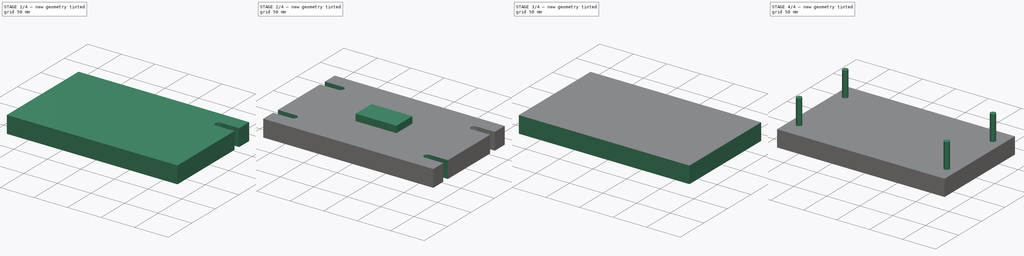
[diagram: build sequence overview — one tinted view per stage of 4, left to right]
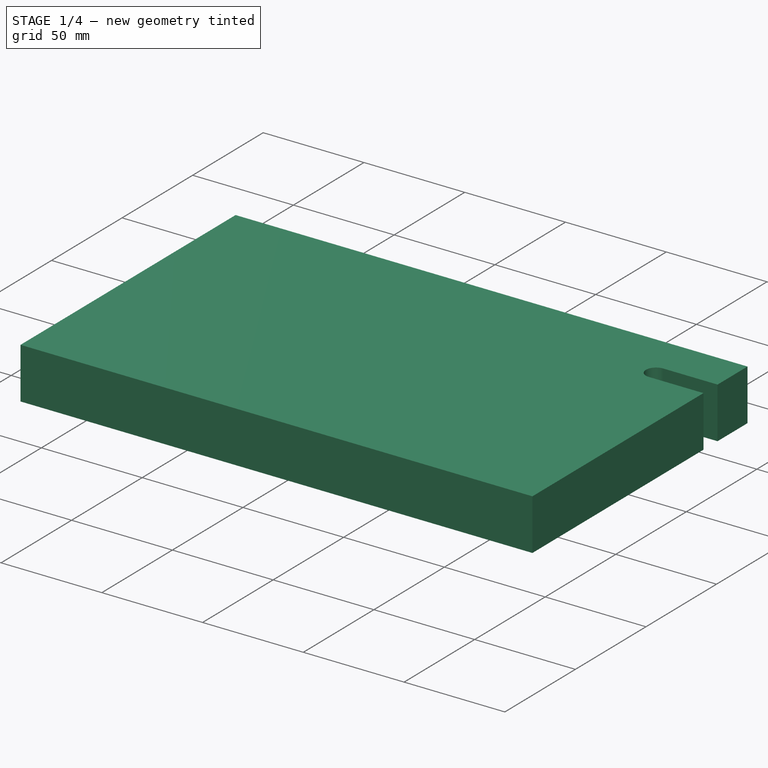
[diagram: stage 1 of 4 — iso view after this stage's code; geometry added in this stage tinted green]
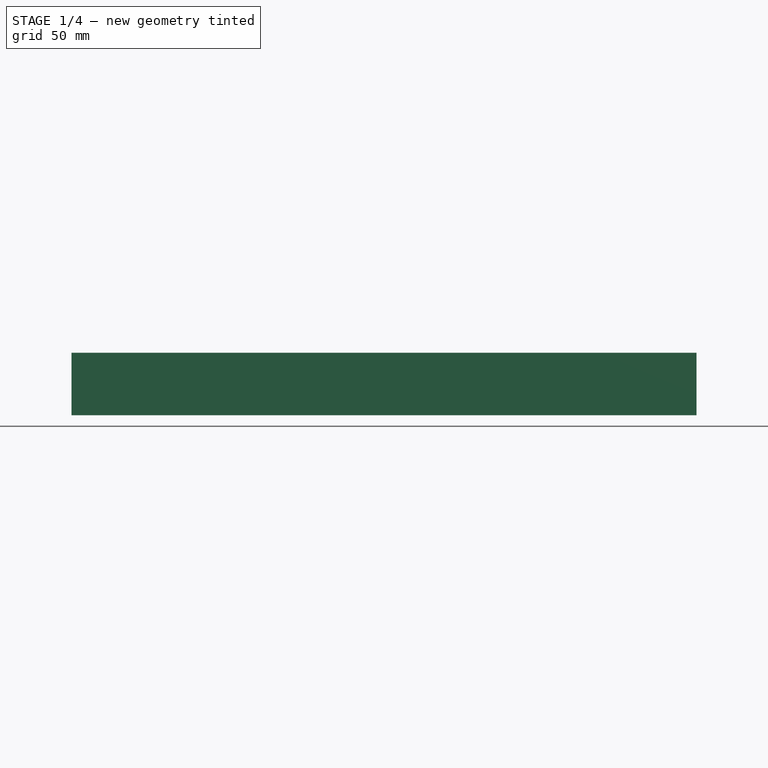
[diagram: stage 1 of 4 — front view after this stage's code; geometry added in this stage tinted green]
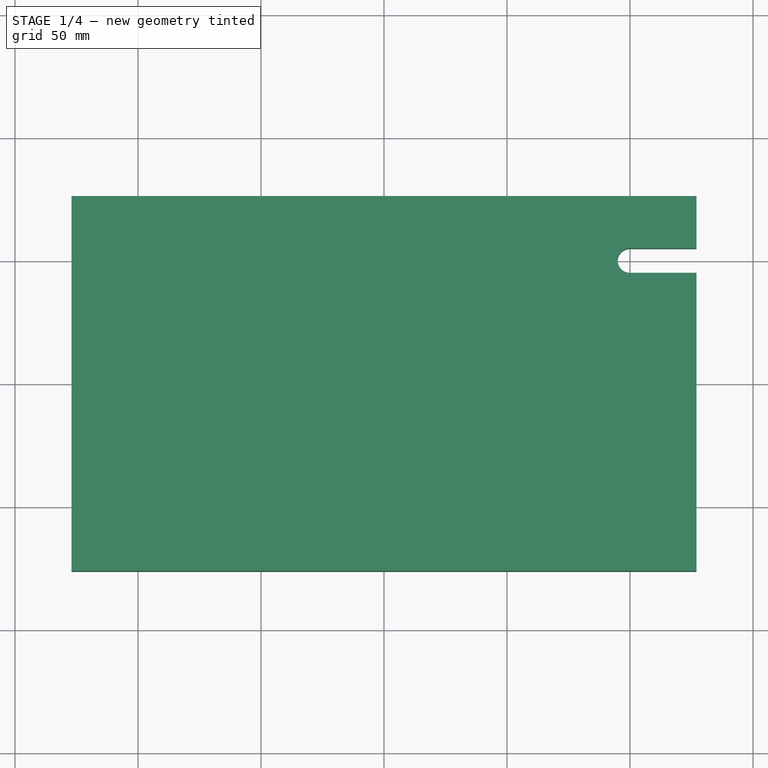
[diagram: stage 1 of 4 — top view after this stage's code; geometry added in this stage tinted green]
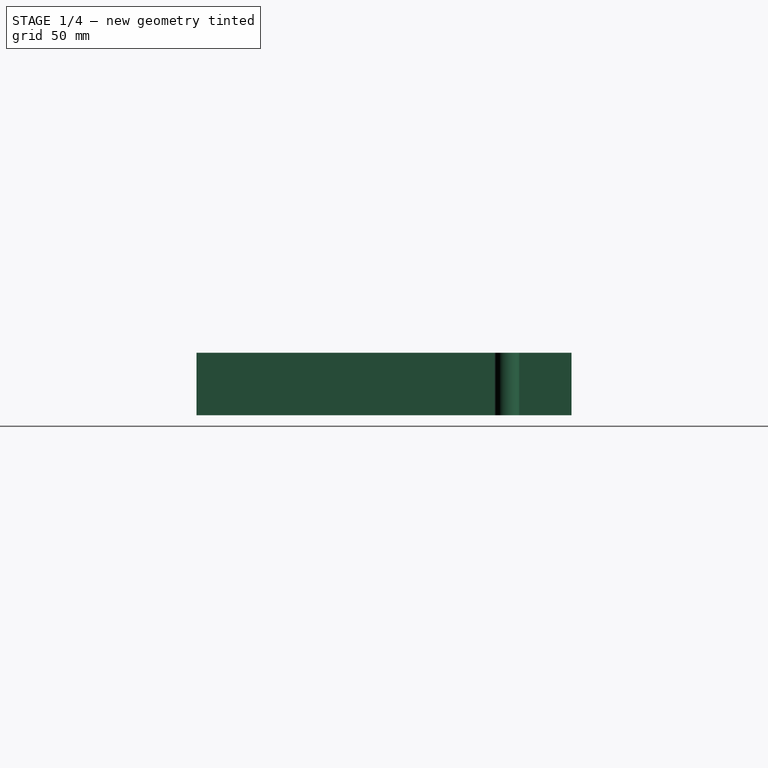
[diagram: stage 1 of 4 — right view after this stage's code; geometry added in this stage tinted green]
FCSTD DOCUMENT  (FreeCAD 0.17R13523 (Git))
Label: bell-metaldetector
License: All rights reserved
LicenseURL: http://en.wikipedia.org/wiki/All_rights_reserved
objects: Sketcher::SketchObject×8, PartDesign::Pad×4, PartDesign::Mirrored×4, PartDesign::Pocket×2, PartDesign::MultiTransform×2, PartDesign::Body×2, PartDesign::Revolution×1, PartDesign::ShapeBinder×1
note: 31 computed .brp shape members not serialized (recipe doc carries the construction recipe); baked Part::Feature solids carry a one-line shape summary decoded from their .brp

FEATURE [Sketcher::SketchObject] Sketch
  MapMode = 5
  Support = -> [XY_Plane]
  sketch-geometry (4):
    g0: LineSegment StartX=-127 StartY=76.2 StartZ=0 EndX=127 EndY=76.2 EndZ=0
    g1: LineSegment StartX=127 StartY=76.2 StartZ=0 EndX=127 EndY=-76.2 EndZ=0
    g2: LineSegment StartX=127 StartY=-76.2 StartZ=0 EndX=-127 EndY=-76.2 EndZ=0
    g3: LineSegment StartX=-127 StartY=-76.2 StartZ=0 EndX=-127 EndY=76.2 EndZ=0
  constraints (11):
    c: Coincident(g0,g1)
    c: Coincident(g1,g2)
    c: Coincident(g2,g3)
    c: Coincident(g3,g0)
    c: Horizontal(g0)
    c: Horizontal(g2)
    c: Vertical(g1)
    c: Vertical(g3)
    c: Symmetric(g0,g2,g-1)
    c: DistanceX(g0,g0) = 254
    c: DistanceY(g3,g3) = 152.4
FEATURE [PartDesign::Pad] Pad
  Length = 25.4
  Length2 = 100
  Profile = -> Sketch
  Type = 0
FEATURE [Sketcher::SketchObject] Sketch001
  MapMode = 5
  Placement = pos=(0,0,25.4) rot=(0,0,1;0rad)
  Support = -> [Pad]
  sketch-geometry (4):
    g0: LineSegment StartX=133.014 StartY=55 StartZ=0 EndX=100 EndY=55 EndZ=0
    g1: ArcOfCircle CenterX=100 CenterY=50 CenterZ=0 NormalX=0 NormalY=0 NormalZ=1 AngleXU=0 Radius=5 StartAngle=1.5708 EndAngle=4.71239
    g2: LineSegment StartX=100 StartY=45 StartZ=0 EndX=133.014 EndY=45 EndZ=0
    g3: LineSegment StartX=133.014 StartY=45 StartZ=0 EndX=133.014 EndY=55 EndZ=0
  constraints (10):
    c: Horizontal(g0)
    c: Tangent(g0,g1) = -1.5708
    c: Tangent(g1,g2) = -1.5708
    c: Coincident(g2,g3)
    c: Coincident(g3,g0)
    c: Horizontal(g2)
    c: Vertical(g3)
    c: Radius(g1) = 5
    c: DistanceX(g1) = 100
    c: DistanceY(g1) = 50
FEATURE [PartDesign::Pocket] Pocket
  BaseFeature = -> Pad
  Length = 5
  Length2 = 100
  Profile = -> Sketch001
  Type = 1
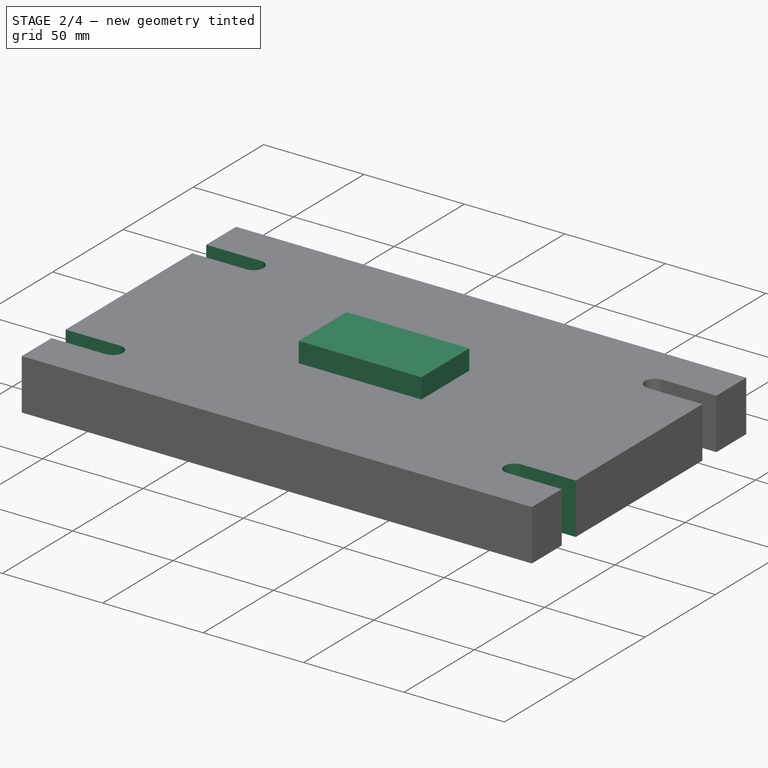
[diagram: stage 2 of 4 — iso view after this stage's code; geometry added in this stage tinted green]
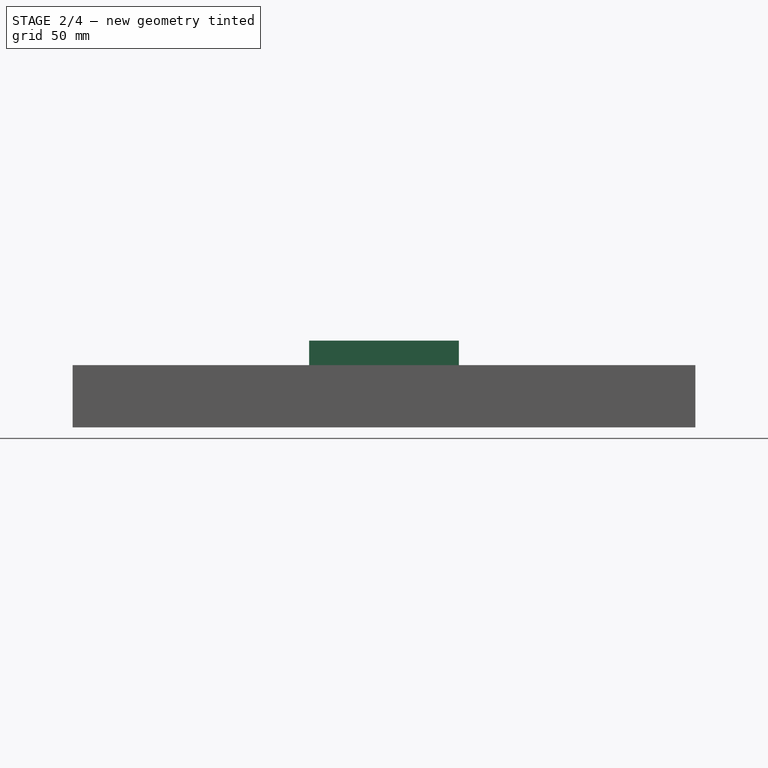
[diagram: stage 2 of 4 — front view after this stage's code; geometry added in this stage tinted green]
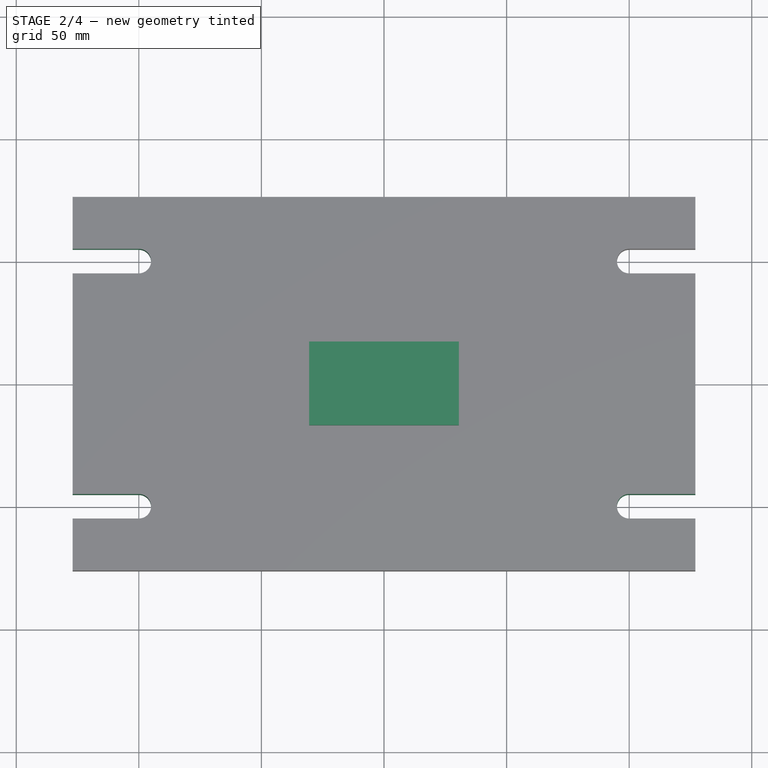
[diagram: stage 2 of 4 — top view after this stage's code; geometry added in this stage tinted green]
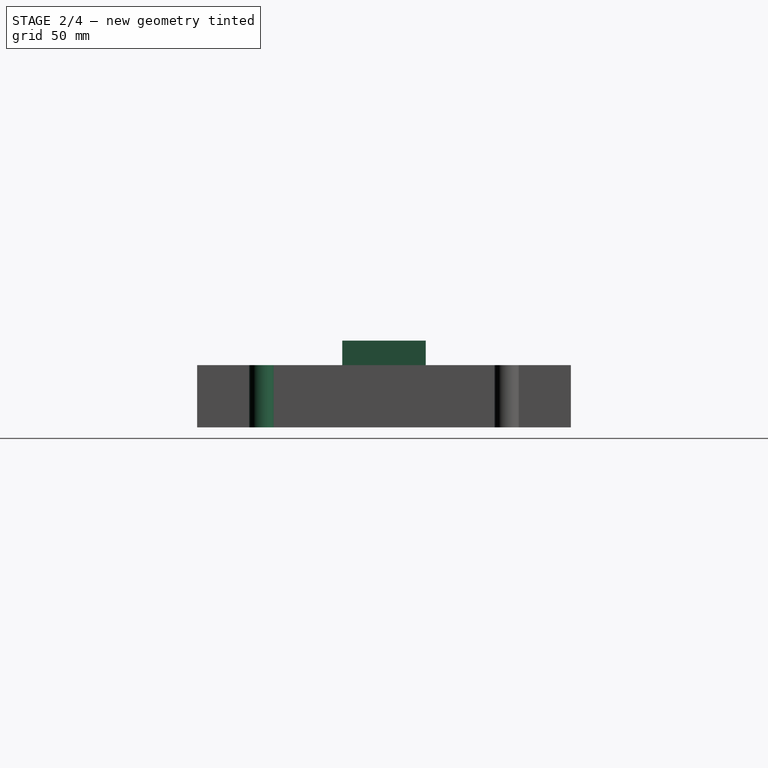
[diagram: stage 2 of 4 — right view after this stage's code; geometry added in this stage tinted green]
FEATURE [PartDesign::Mirrored] Mirrored
  MirrorPlane = -> YZ_Plane
FEATURE [PartDesign::Mirrored] Mirrored001
  MirrorPlane = -> XZ_Plane
FEATURE [PartDesign::MultiTransform] MultiTransform
  BaseFeature = -> Pocket
  Originals = -> [Pocket]
  Transformations = -> [Mirrored,Mirrored001]
FEATURE [Sketcher::SketchObject] Sketch002
  MapMode = 5
  Placement = pos=(0,0,25.4) rot=(0,0,1;0rad)
  Support = -> [MultiTransform]
  sketch-geometry (4):
    g0: LineSegment StartX=-30.56 StartY=17.015 StartZ=0 EndX=30.56 EndY=17.015 EndZ=0
    g1: LineSegment StartX=30.56 StartY=17.015 StartZ=0 EndX=30.56 EndY=-17.015 EndZ=0
    g2: LineSegment StartX=30.56 StartY=-17.015 StartZ=0 EndX=-30.56 EndY=-17.015 EndZ=0
    g3: LineSegment StartX=-30.56 StartY=-17.015 StartZ=0 EndX=-30.56 EndY=17.015 EndZ=0
  constraints (11):
    c: Coincident(g0,g1)
    c: Coincident(g1,g2)
    c: Coincident(g2,g3)
    c: Coincident(g3,g0)
    c: Horizontal(g0)
    c: Horizontal(g2)
    c: Vertical(g1)
    c: Vertical(g3)
    c: Symmetric(g0,g2,g-1)
    c: DistanceX(g0,g0) = 61.12
    c: DistanceY(g1,g1) = 34.03
FEATURE [PartDesign::Pad] Pad001
  BaseFeature = -> MultiTransform
  Length = 10
  Length2 = 100
  Profile = -> Sketch002
  Type = 0
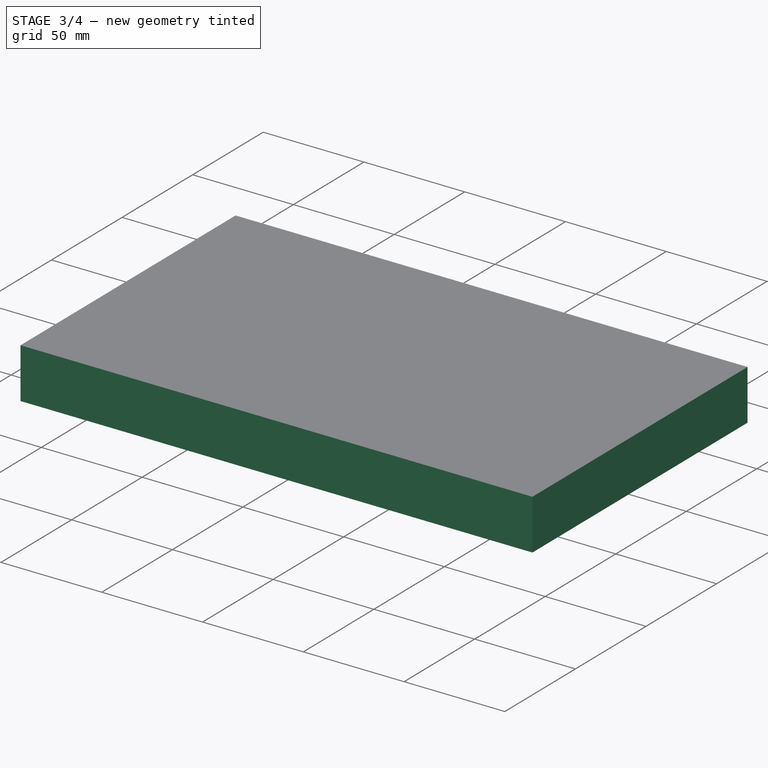
[diagram: stage 3 of 4 — iso view after this stage's code; geometry added in this stage tinted green]
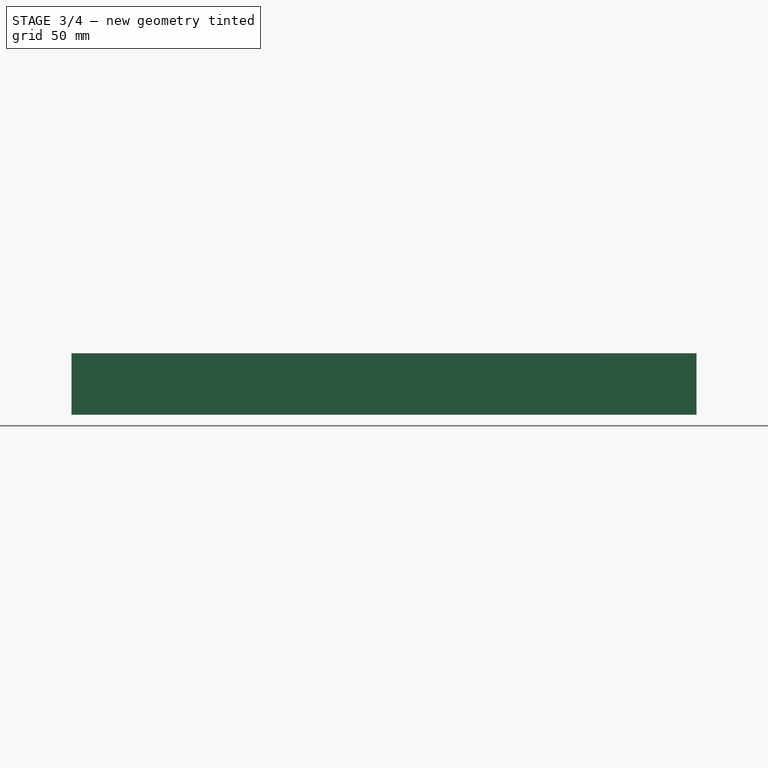
[diagram: stage 3 of 4 — front view after this stage's code; geometry added in this stage tinted green]
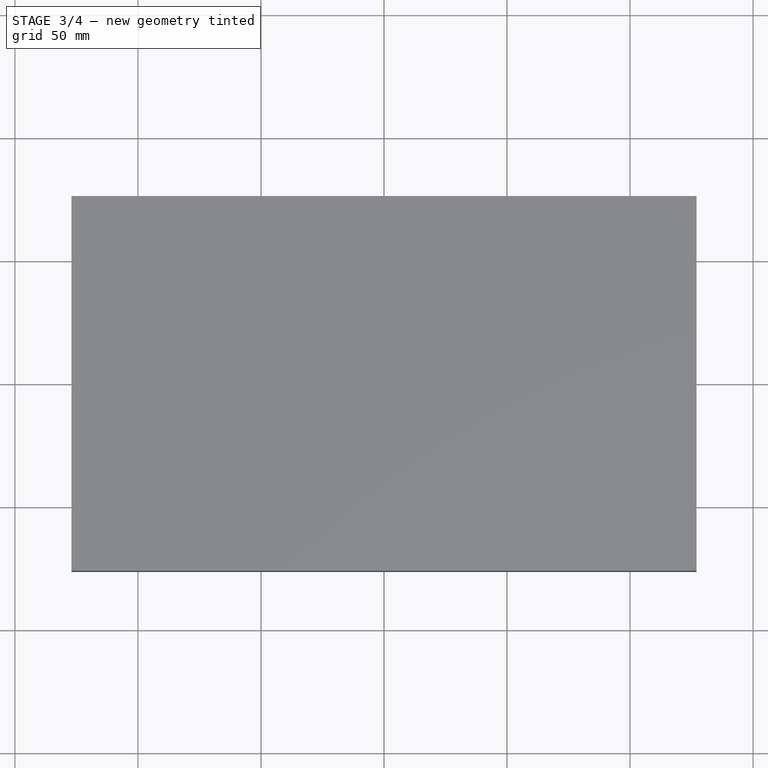
[diagram: stage 3 of 4 — top view after this stage's code; geometry added in this stage tinted green]
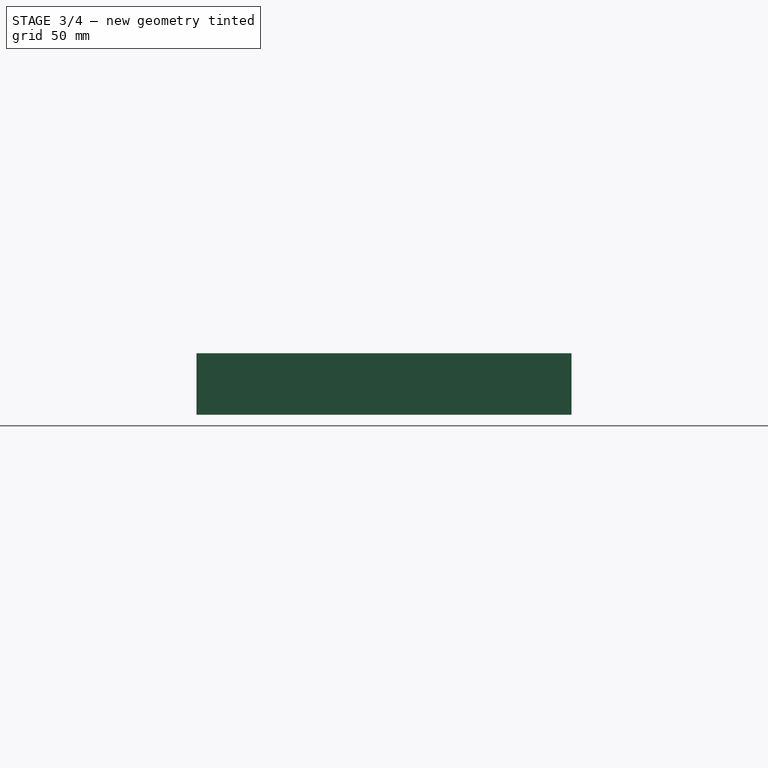
[diagram: stage 3 of 4 — right view after this stage's code; geometry added in this stage tinted green]
FEATURE [Sketcher::SketchObject] Sketch003
  ExternalGeometry = -> [Pad001]
  MapMode = 5
  Placement = pos=(0,0,0) rot=(1,0,0;1.5708rad)
  Support = -> [XZ_Plane]
  sketch-geometry (6):
    g0: LineSegment StartX=0 StartY=35.4 StartZ=0 EndX=14.2545 EndY=35.4 EndZ=0
    g1: LineSegment StartX=14.2545 StartY=35.4 StartZ=0 EndX=14.2545 EndY=48.6294 EndZ=0
    g2: ArcOfCircle CenterX=41.9862 CenterY=48.6294 CenterZ=0 NormalX=0 NormalY=0 NormalZ=1 AngleXU=0 Radius=27.7317 StartAngle=2.81445 EndAngle=3.14159
    g3: ArcOfCircle CenterX=-87.6203 CenterY=92.6088 CenterZ=0 NormalX=0 NormalY=0 NormalZ=1 AngleXU=0 Radius=109.133 StartAngle=5.95605 EndAngle=6.24718
    g4: ArcOfCircle CenterX=0 CenterY=89.4529 CenterZ=0 NormalX=0 NormalY=0 NormalZ=1 AngleXU=0 Radius=21.4562 StartAngle=6.24718 EndAngle=7.85398
    g5: LineSegment StartX=0 StartY=110.909 StartZ=0 EndX=0 EndY=35.4 EndZ=0
  constraints (11):
    c: PointOnObject(g0,g-3)
    c: PointOnObject(g0,g-3)
    c: Perpendicular(g0,g1) = 1.5708
    c: Tangent(g1,g2) = 1.5708
    c: Tangent(g2,g3) = 1.5708
    c: Coincident(g5,g4)
    c: Coincident(g5,g0)
    c: Vertical(g5)
    c: PointOnObject(g0,g-2)
    c: Tangent(g3,g4) = -1.5708
    c: Perpendicular(g4,g5)
FEATURE [PartDesign::Revolution] Revolution
  Angle = 360
  Axis = (0,0,1)
  Base = (0,0,0)
  BaseFeature = -> Pad001
  Profile = -> Sketch003
  ReferenceAxis = -> Sketch003 [V_Axis]
  Reversed = true
FEATURE [Sketcher::SketchObject] Sketch004
  MapMode = 5
  Placement = pos=(0,0,0) rot=(1,0,0;3.14159rad)
  Support = -> [Revolution]
  sketch-geometry (4):
    g0: ArcOfCircle CenterX=-29.1587 CenterY=0 CenterZ=0 NormalX=0 NormalY=0 NormalZ=1 AngleXU=0 Radius=41.3857 StartAngle=3.25204 EndAngle=9.31433
    g1: LineSegment StartX=-139.743 StartY=4.56182 StartZ=0 EndX=-70.2922 EndY=4.56182 EndZ=0
    g2: LineSegment StartX=-70.2922 StartY=-4.56182 StartZ=0 EndX=-139.743 EndY=-4.56182 EndZ=0
    g3: LineSegment StartX=-139.743 StartY=-4.56182 StartZ=0 EndX=-139.743 EndY=4.56182 EndZ=0
  constraints (9):
    c: PointOnObject(g0,g-1)
    c: Coincident(g2,g3)
    c: Coincident(g3,g1)
    c: Horizontal(g1)
    c: Horizontal(g2)
    c: Vertical(g3)
    c: Coincident(g0,g2)
    c: Coincident(g0,g1)
    c: Symmetric(g1,g2,g-1)
FEATURE [PartDesign::Pocket] Pocket001
  BaseFeature = -> Revolution
  Length = 16
  Length2 = 100
  Profile = -> Sketch004
  Type = 0
FEATURE [PartDesign::Body] Body
  Group = -> [Sketch,Pad,Sketch001,Pocket,MultiTransform,Mirrored,Mirrored001,Sketch002,Pad001,Sketch003,Revolution,Sketch004,Pocket001]
  Origin = -> Origin
  Tip = -> Pocket001
FEATURE [PartDesign::ShapeBinder] ShapeBinder
  Support = -> [Pocket001]
FEATURE [Sketcher::SketchObject] Sketch005
  ExternalGeometry = -> [ShapeBinder]
  MapMode = 5
  Placement = pos=(0,0,0) rot=(1,0,0;3.14159rad)
  Support = -> [ShapeBinder]
  sketch-geometry (4):
    g0: LineSegment StartX=-127 StartY=76.2 StartZ=0 EndX=127 EndY=76.2 EndZ=0
    g1: LineSegment StartX=127 StartY=76.2 StartZ=0 EndX=127 EndY=-76.2 EndZ=0
    g2: LineSegment StartX=127 StartY=-76.2 StartZ=0 EndX=-127 EndY=-76.2 EndZ=0
    g3: LineSegment StartX=-127 StartY=-76.2 StartZ=0 EndX=-127 EndY=76.2 EndZ=0
  constraints (10):
    c: Coincident(g0,g1)
    c: Coincident(g1,g2)
    c: Coincident(g2,g3)
    c: Coincident(g3,g0)
    c: Horizontal(g0)
    c: Horizontal(g2)
    c: Vertical(g1)
    c: Vertical(g3)
    c: Coincident(g-4,g0)
    c: Coincident(g-5,g1)
FEATURE [PartDesign::Pad] Pad002
  Length = 25
  Length2 = 100
  Profile = -> Sketch005
  Type = 0
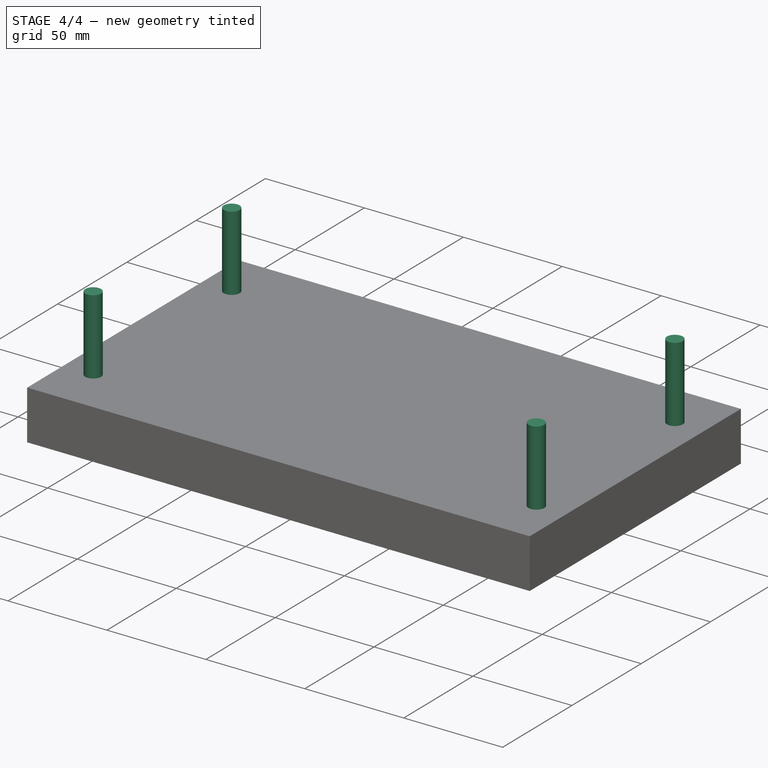
[diagram: stage 4 of 4 — iso view after this stage's code; geometry added in this stage tinted green]
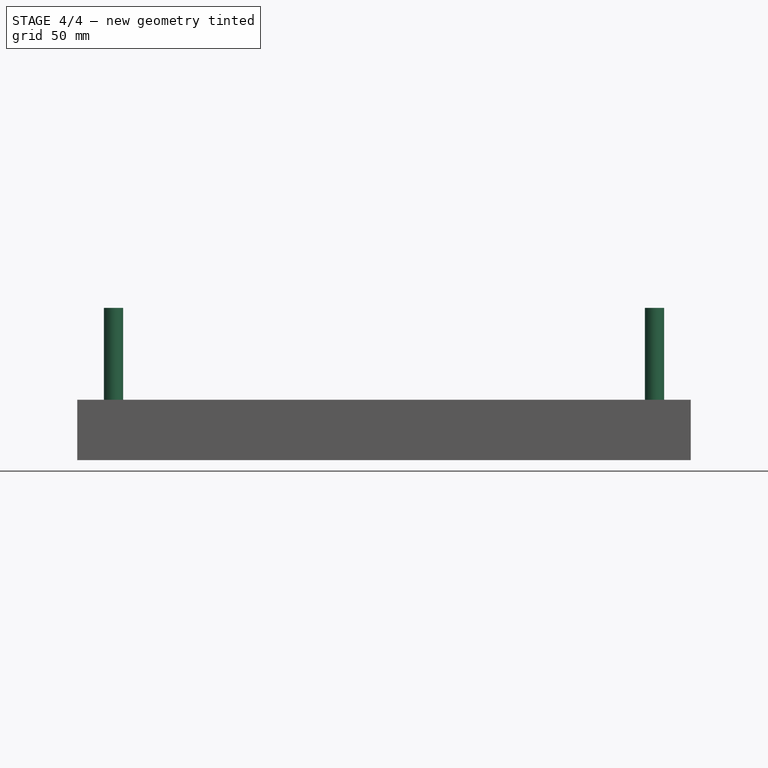
[diagram: stage 4 of 4 — front view after this stage's code; geometry added in this stage tinted green]
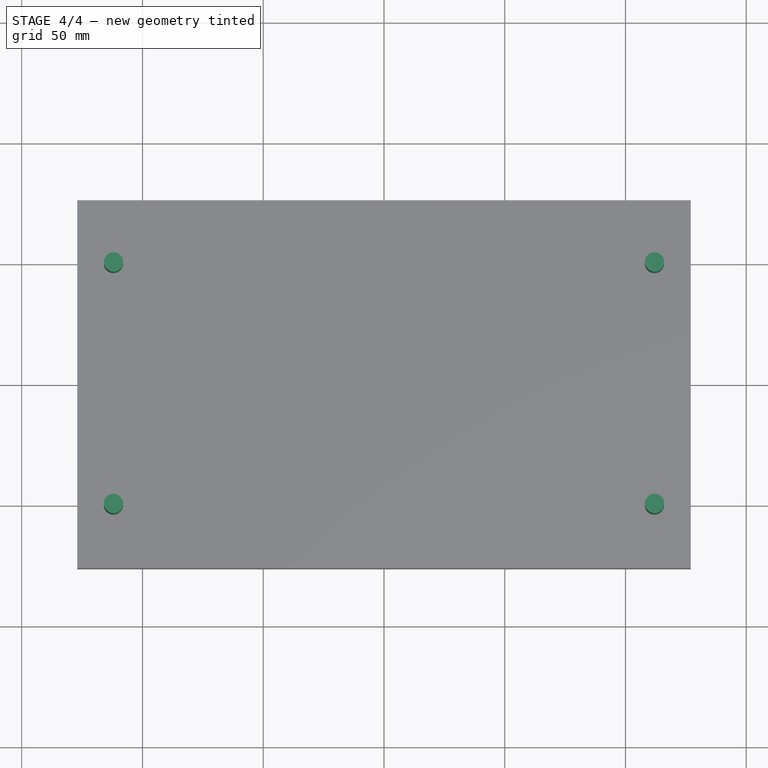
[diagram: stage 4 of 4 — top view after this stage's code; geometry added in this stage tinted green]
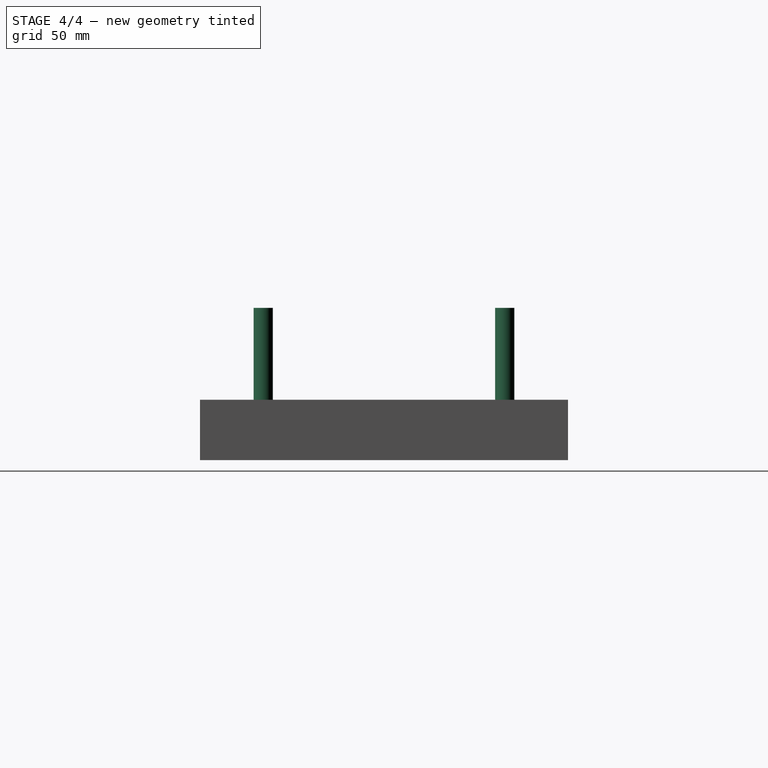
[diagram: stage 4 of 4 — right view after this stage's code; geometry added in this stage tinted green]
FEATURE [Sketcher::SketchObject] Sketch006
  MapMode = 5
  Placement = pos=(0,0,0) rot=(1,0,0;3.14159rad)
  Support = -> [ShapeBinder]
FEATURE [Sketcher::SketchObject] Sketch007
  ExternalGeometry = -> [ShapeBinder]
  MapMode = 5
  Support = -> [Pad002]
  sketch-geometry (2):
    g0: Circle CenterX=-112 CenterY=50 CenterZ=0 NormalX=0 NormalY=0 NormalZ=1 AngleXU=0 Radius=4
    g1: LineSegment [constr] StartX=-112 StartY=50 StartZ=0 EndX=-100 EndY=50 EndZ=0
  constraints (5):
    c: Coincident(g1,g0)
    c: Coincident(g1,g-3)
    c: Horizontal(g1)
    c: DistanceX(g1,g1) = 12
    c: Radius(g0) = 4
FEATURE [PartDesign::Pad] Pad003
  BaseFeature = -> Pad002
  Length = 38
  Length2 = 100
  Profile = -> Sketch007
  Type = 0
FEATURE [PartDesign::Mirrored] Mirrored002
  MirrorPlane = -> XZ_Plane001
FEATURE [PartDesign::Mirrored] Mirrored003
  MirrorPlane = -> YZ_Plane001
FEATURE [PartDesign::MultiTransform] MultiTransform001
  BaseFeature = -> Pad003
  Originals = -> [Pad003]
  Transformations = -> [Mirrored002,Mirrored003]
FEATURE [PartDesign::Body] Body001
  Group = -> [ShapeBinder,Sketch005,Pad002,Sketch006,Sketch007,Pad003,MultiTransform001,Mirrored002,Mirrored003]
  Origin = -> Origin001
  Tip = -> MultiTransform001
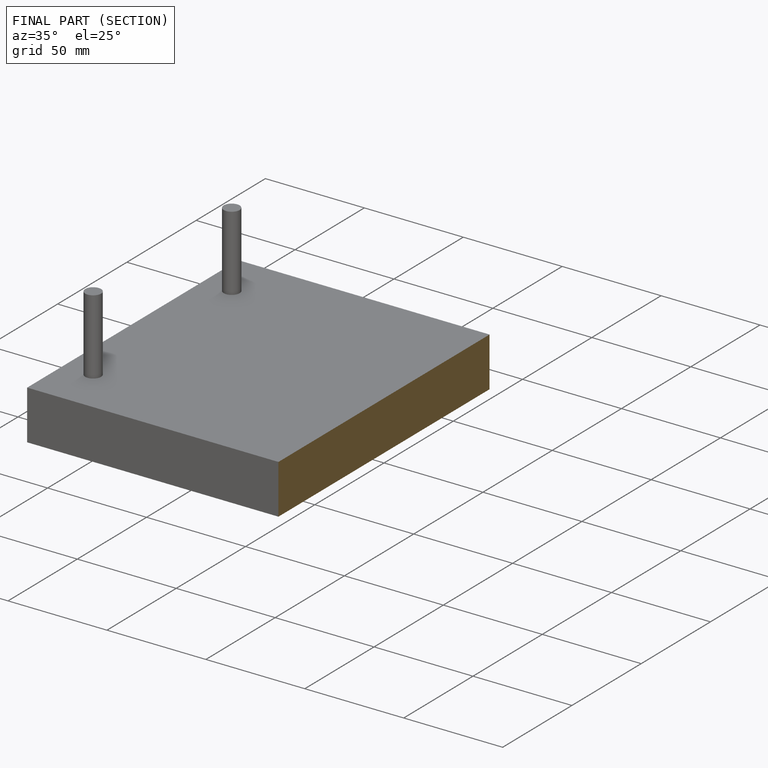
[diagram: finished part — half-section view (interior)]
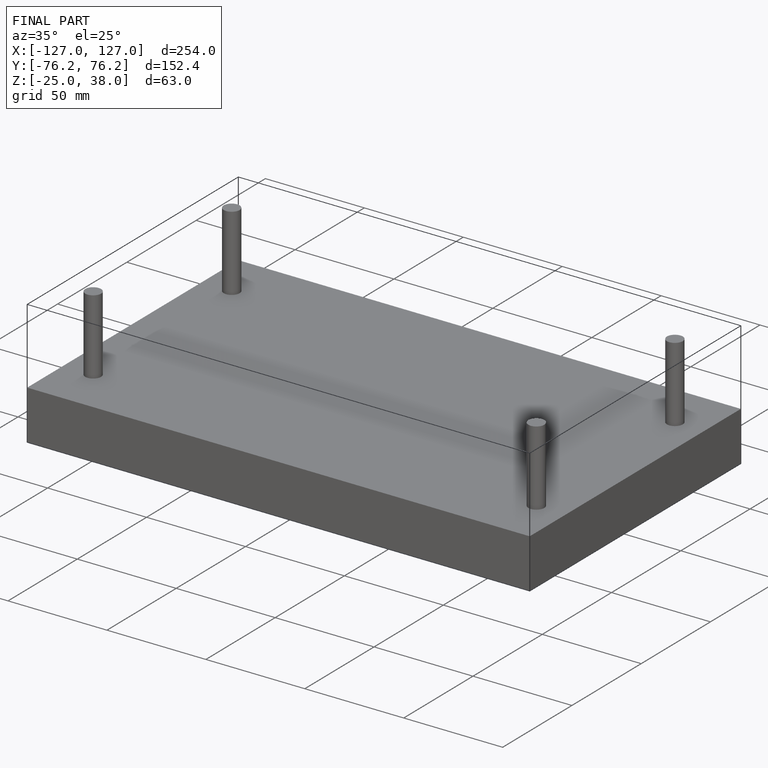
[diagram: finished part — iso view with bounding-box wireframe]
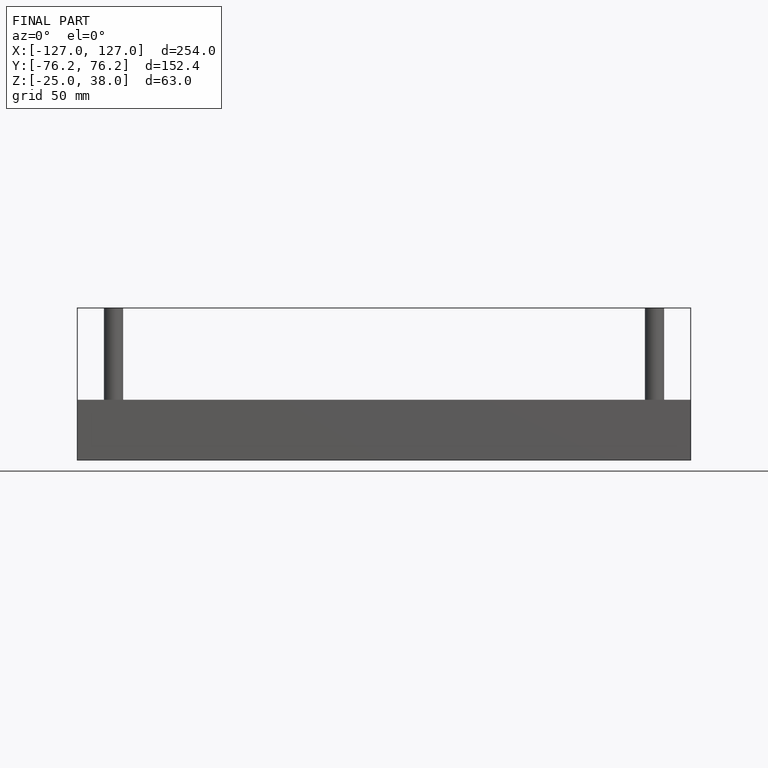
[diagram: finished part — front view with bounding-box wireframe]
